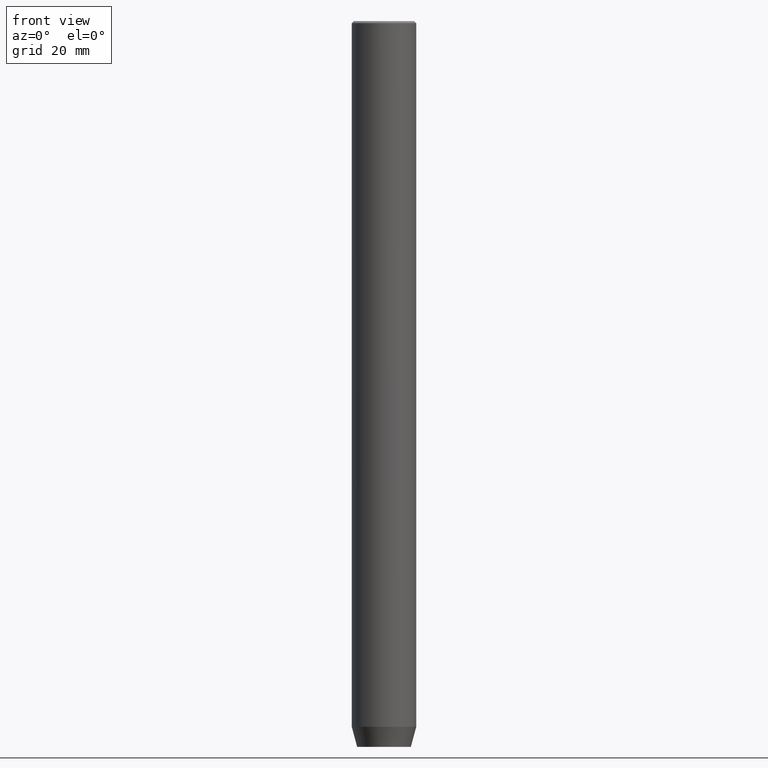
[diagram: clean part render]
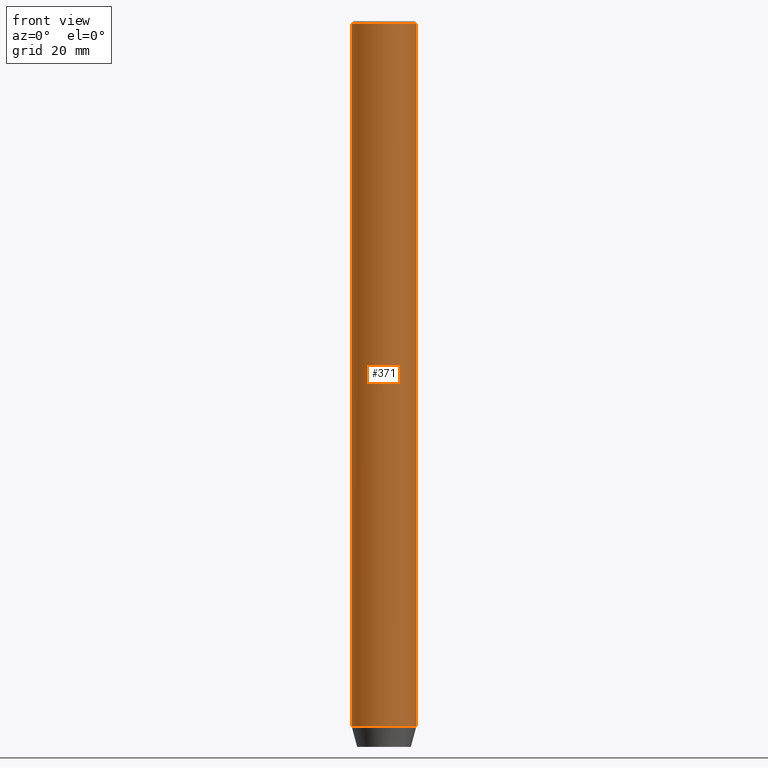
[diagram: same view with one face highlighted and labeled with its STEP entity id]
A machine part, front view. The second image highlights one B-rep face of the part: STEP entity #371.
In plain terms, the highlighted cylindrical surface (edge-blend (fillet) strip) has radius 8 mm, axis along (-0, -0, 1).
Its self-contained STEP definition (entity closure, byte-faithful):
#44 = DIRECTION ( 'NONE',  ( 1.000000000000000000, 0.000000000000000000, 0.000000000000000000 ) ) ;
#73 = AXIS2_PLACEMENT_3D ( 'NONE', #542, #586, #138 ) ;
#113 = EDGE_LOOP ( 'NONE', ( #285, #345, #508, #260 ) ) ;
#138 = DIRECTION ( 'NONE',  ( 1.000000000000000000, 0.000000000000000000, 0.000000000000000000 ) ) ;
#162 = VECTOR ( 'NONE', #268, 1000.000000000000000 ) ;
#166 = CARTESIAN_POINT ( 'NONE',  ( 8.000000000000000000, 0.000000000000000000, 0.000000000000000000 ) ) ;
#172 = AXIS2_PLACEMENT_3D ( 'NONE', #344, #252, #211 ) ;
#197 = EDGE_CURVE ( 'NONE', #547, #319, #292, .T. ) ;
#211 = DIRECTION ( 'NONE',  ( 1.000000000000000000, 0.000000000000000000, 0.000000000000000000 ) ) ;
#224 = EDGE_CURVE ( 'NONE', #547, #407, #347, .T. ) ;
#229 = CYLINDRICAL_SURFACE ( 'NONE', #73, 8.000000000000000000 ) ;
#240 = EDGE_CURVE ( 'NONE', #511, #407, #565, .T. ) ;
#242 = CARTESIAN_POINT ( 'NONE',  ( 8.000000000000000000, 0.000000000000000000, -0.4999999999999657496 ) ) ;
#252 = DIRECTION ( 'NONE',  ( 0.000000000000000000, 0.000000000000000000, -1.000000000000000000 ) ) ;
#254 = CARTESIAN_POINT ( 'NONE',  ( 0.000000000000000000, 0.000000000000000000, -175.0000000000000000 ) ) ;
#260 = ORIENTED_EDGE ( 'NONE', *, *, #240, .T. ) ;
#267 = EDGE_CURVE ( 'NONE', #319, #511, #573, .T. ) ;
#268 = DIRECTION ( 'NONE',  ( -0.000000000000000000, -0.000000000000000000, 1.000000000000000000 ) ) ;
#273 = VECTOR ( 'NONE', #349, 1000.000000000000000 ) ;
#285 = ORIENTED_EDGE ( 'NONE', *, *, #224, .F. ) ;
#292 = CIRCLE ( 'NONE', #383, 8.000000000000000000 ) ;
#319 = VERTEX_POINT ( 'NONE', #359 ) ;
#335 = CARTESIAN_POINT ( 'NONE',  ( -8.000000000000000000, 9.797174393178825657E-16, -175.0000000000000000 ) ) ;
#344 = CARTESIAN_POINT ( 'NONE',  ( 0.000000000000000000, 0.000000000000000000, -0.4999999999999657496 ) ) ;
#345 = ORIENTED_EDGE ( 'NONE', *, *, #197, .T. ) ;
#347 = LINE ( 'NONE', #435, #273 ) ;
#349 = DIRECTION ( 'NONE',  ( -0.000000000000000000, -0.000000000000000000, 1.000000000000000000 ) ) ;
#359 = CARTESIAN_POINT ( 'NONE',  ( 8.000000000000000000, 0.000000000000000000, -175.0000000000000000 ) ) ;
#363 = CARTESIAN_POINT ( 'NONE',  ( -8.000000000000000000, 9.797174393178825657E-16, -0.4999999999999657496 ) ) ;
#369 = FACE_OUTER_BOUND ( 'NONE', #113, .T. ) ;
#371 = ADVANCED_FACE ( 'NONE', ( #369 ), #229, .T. ) ;
#383 = AXIS2_PLACEMENT_3D ( 'NONE', #254, #476, #44 ) ;
#407 = VERTEX_POINT ( 'NONE', #363 ) ;
#435 = CARTESIAN_POINT ( 'NONE',  ( -8.000000000000000000, 9.797174393178825657E-16, 0.000000000000000000 ) ) ;
#476 = DIRECTION ( 'NONE',  ( -0.000000000000000000, -0.000000000000000000, 1.000000000000000000 ) ) ;
#508 = ORIENTED_EDGE ( 'NONE', *, *, #267, .T. ) ;
#511 = VERTEX_POINT ( 'NONE', #242 ) ;
#542 = CARTESIAN_POINT ( 'NONE',  ( 0.000000000000000000, 0.000000000000000000, 0.000000000000000000 ) ) ;
#547 = VERTEX_POINT ( 'NONE', #335 ) ;
#565 = CIRCLE ( 'NONE', #172, 8.000000000000000000 ) ;
#573 = LINE ( 'NONE', #166, #162 ) ;
#586 = DIRECTION ( 'NONE',  ( -0.000000000000000000, -0.000000000000000000, 1.000000000000000000 ) ) ;